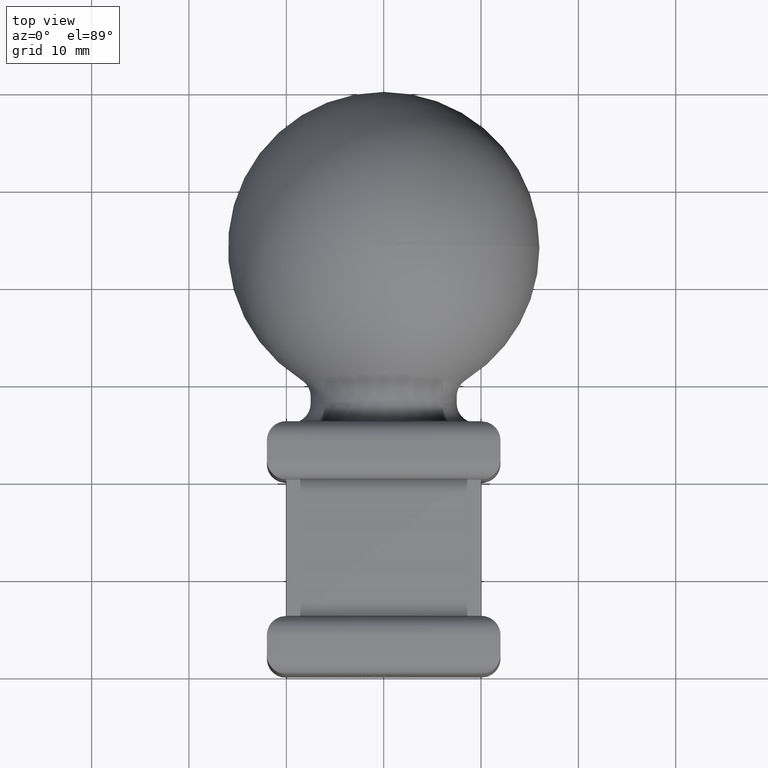
[diagram: clean part render]
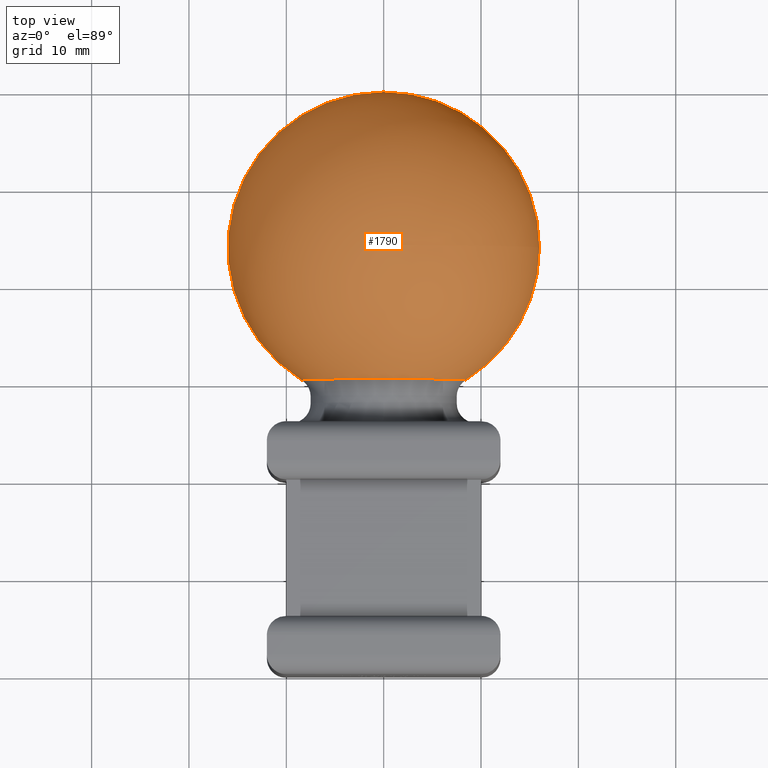
[diagram: same view with one face highlighted and labeled with its STEP entity id]
A machine part, top view. The second image highlights one B-rep face of the part: STEP entity #1790.
In plain terms, the highlighted spherical surface has radius 16 mm.
Its self-contained STEP definition (entity closure, byte-faithful):
#523 = DIRECTION ( 'NONE',  ( 1.000000000000000000, 0.0000000000000000000, -1.224646799147353200E-016 ) ) ;
#801 = EDGE_CURVE ( 'NONE', #10635, #5065, #5520, .T. ) ;
#1790 = ADVANCED_FACE ( 'NONE', ( #6189 ), #7114, .T. ) ;
#1973 = EDGE_CURVE ( 'NONE', #5703, #10635, #2364, .T. ) ;
#2364 = CIRCLE ( 'NONE', #2384, 16.00000000000000000 ) ;
#2384 = AXIS2_PLACEMENT_3D ( 'NONE', #4063, #6640, #523 ) ;
#3131 = EDGE_LOOP ( 'NONE', ( #6644, #6113, #9557 ) ) ;
#3271 = CARTESIAN_POINT ( 'NONE',  ( 0.0000000000000000000, 44.00000000000000700, 0.0000000000000000000 ) ) ;
#3367 = CARTESIAN_POINT ( 'NONE',  ( 0.0000000000000000000, 44.00000000000000700, 0.0000000000000000000 ) ) ;
#3486 = AXIS2_PLACEMENT_3D ( 'NONE', #3367, #11131, #6694 ) ;
#3681 = DIRECTION ( 'NONE',  ( -1.000000000000000000, 0.0000000000000000000, 0.0000000000000000000 ) ) ;
#3945 = CIRCLE ( 'NONE', #3486, 16.00000000000000000 ) ;
#3984 = AXIS2_PLACEMENT_3D ( 'NONE', #5470, #8864, #3681 ) ;
#4063 = CARTESIAN_POINT ( 'NONE',  ( 0.0000000000000000000, 44.00000000000000700, 0.0000000000000000000 ) ) ;
#4352 = CARTESIAN_POINT ( 'NONE',  ( 8.444444444444441100, 30.40988013207053000, 0.0000000000000000000 ) ) ;
#4463 = CARTESIAN_POINT ( 'NONE',  ( -8.444444444444441100, 30.40988013207053000, 1.034146185946653300E-015 ) ) ;
#4890 = EDGE_CURVE ( 'NONE', #5703, #5065, #3945, .T. ) ;
#5065 = VERTEX_POINT ( 'NONE', #4352 ) ;
#5470 = CARTESIAN_POINT ( 'NONE',  ( -4.160774199072170600E-016, 30.40988013207053000, 0.0000000000000000000 ) ) ;
#5520 = CIRCLE ( 'NONE', #3984, 8.444444444444442900 ) ;
#5703 = VERTEX_POINT ( 'NONE', #7240 ) ;
#6113 = ORIENTED_EDGE ( 'NONE', *, *, #1973, .T. ) ;
#6189 = FACE_OUTER_BOUND ( 'NONE', #3131, .T. ) ;
#6640 = DIRECTION ( 'NONE',  ( 1.224646799147353200E-016, -3.749399456654644000E-033, 1.000000000000000000 ) ) ;
#6644 = ORIENTED_EDGE ( 'NONE', *, *, #4890, .F. ) ;
#6694 = DIRECTION ( 'NONE',  ( -1.000000000000000000, 0.0000000000000000000, 0.0000000000000000000 ) ) ;
#7114 = SPHERICAL_SURFACE ( 'NONE', #10291, 16.00000000000000000 ) ;
#7240 = CARTESIAN_POINT ( 'NONE',  ( 1.469576158976823900E-015, 60.00000000000000700, 0.0000000000000000000 ) ) ;
#7603 = DIRECTION ( 'NONE',  ( 0.0000000000000000000, 0.0000000000000000000, 1.000000000000000000 ) ) ;
#8496 = DIRECTION ( 'NONE',  ( 1.000000000000000000, 0.0000000000000000000, 0.0000000000000000000 ) ) ;
#8864 = DIRECTION ( 'NONE',  ( 3.061616997868383000E-017, 1.000000000000000000, 0.0000000000000000000 ) ) ;
#9557 = ORIENTED_EDGE ( 'NONE', *, *, #801, .T. ) ;
#10291 = AXIS2_PLACEMENT_3D ( 'NONE', #3271, #7603, #8496 ) ;
#10635 = VERTEX_POINT ( 'NONE', #4463 ) ;
#11131 = DIRECTION ( 'NONE',  ( 0.0000000000000000000, 0.0000000000000000000, -1.000000000000000000 ) ) ;